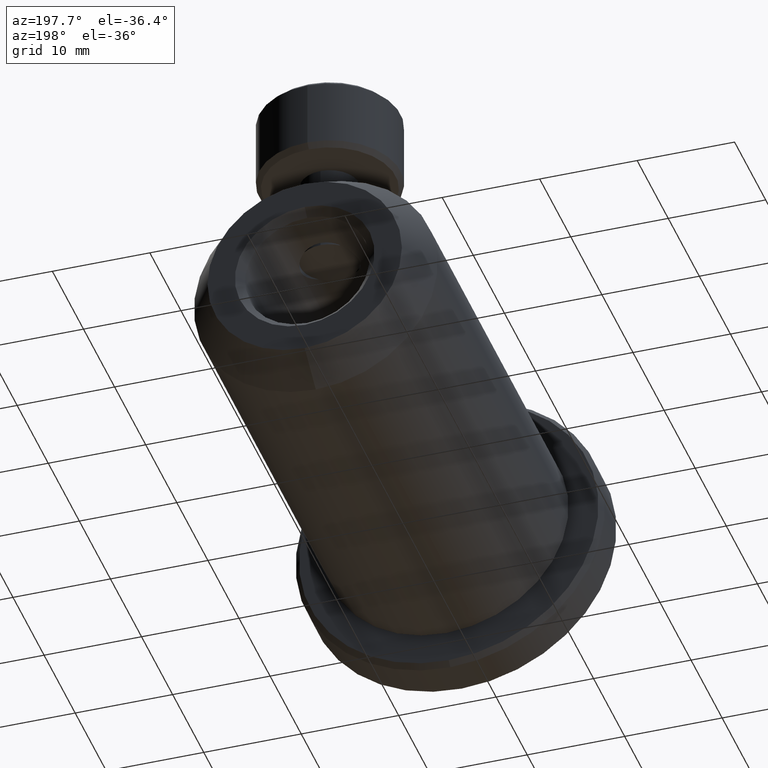
[diagram: clean part render]
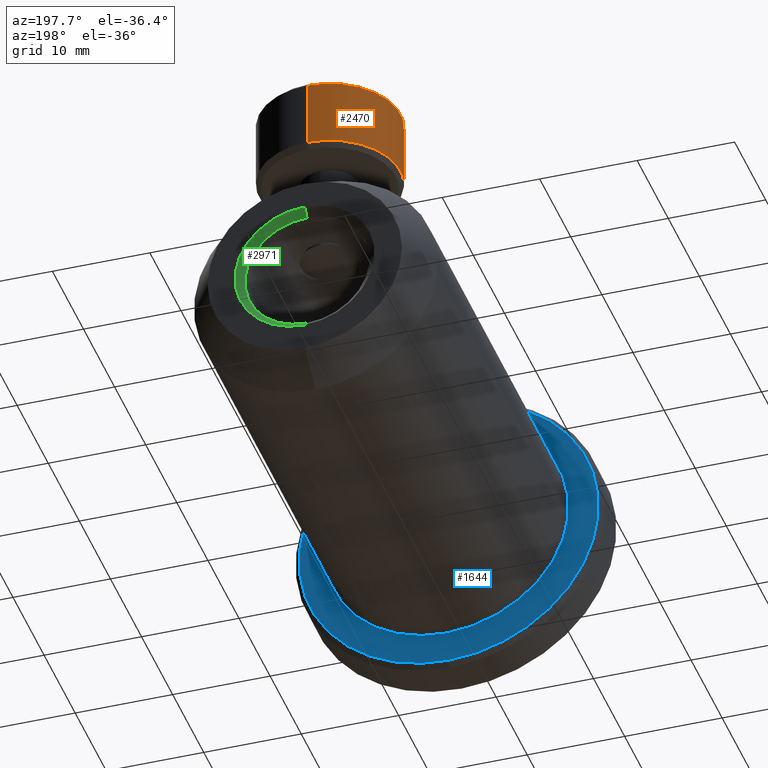
[diagram: same view with three faces highlighted in distinct colors, each labeled with its STEP entity id]
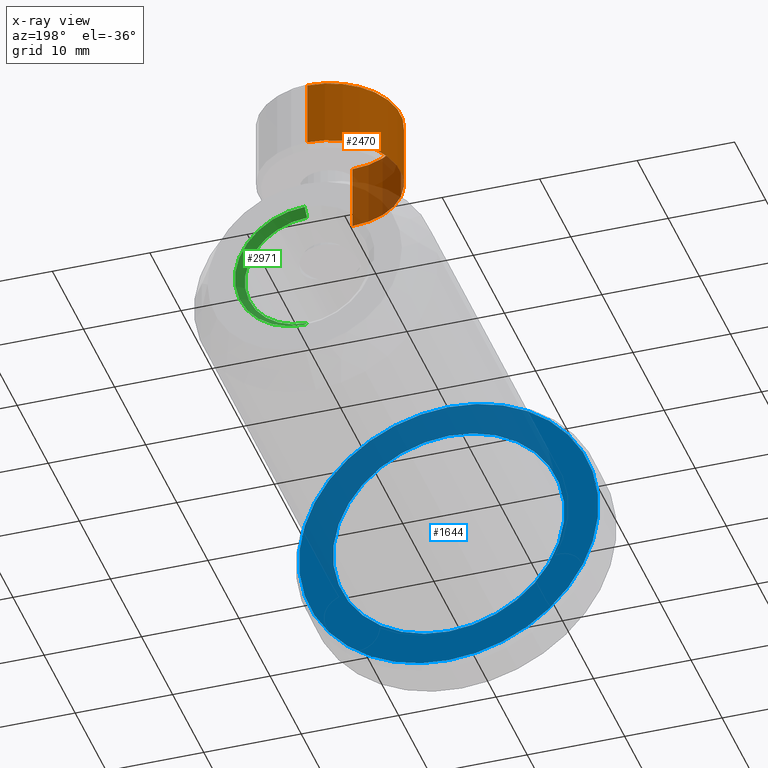
[diagram: x-ray of the same camera — body ghosted, the three highlighted faces saturated]
A machine part, auxiliary view with three faces highlighted in distinct colors.
The next image is the same camera in x-ray (body ghosted, the three faces saturated) — at least one of them is partly hidden behind the body in this view.
Their STEP definitions:

[orange] entity #2470 — the highlighted cylindrical surface (partial cylindrical patch) has radius 7.25 mm, axis along (-0, -0, -1).
#137 = VECTOR ( 'NONE', #609, 1000.000000000000000 ) ;
#217 = ORIENTED_EDGE ( 'NONE', *, *, #2343, .F. ) ;
#323 = AXIS2_PLACEMENT_3D ( 'NONE', #436, #1016, #3220 ) ;
#350 = EDGE_LOOP ( 'NONE', ( #1592, #1631, #3335, #217 ) ) ;
#436 = CARTESIAN_POINT ( 'NONE',  ( -16.77700000000000100, 23.35116843547334000, 34.35262460249725800 ) ) ;
#467 = CARTESIAN_POINT ( 'NONE',  ( -16.77700000000000100, 30.60116843547333700, 27.45262460249725200 ) ) ;
#609 = DIRECTION ( 'NONE',  ( -0.0000000000000000000, -3.304235192336777000E-016, -1.000000000000000000 ) ) ;
#620 = EDGE_CURVE ( 'NONE', #2920, #3243, #3464, .T. ) ;
#722 = AXIS2_PLACEMENT_3D ( 'NONE', #1169, #1974, #2244 ) ;
#752 = DIRECTION ( 'NONE',  ( 0.0000000000000000000, 1.000000000000000000, -4.785444071660157900E-016 ) ) ;
#790 = VERTEX_POINT ( 'NONE', #2331 ) ;
#809 = CARTESIAN_POINT ( 'NONE',  ( -16.77700000000000100, 16.10116843547333700, 27.45262460249725900 ) ) ;
#1016 = DIRECTION ( 'NONE',  ( -0.0000000000000000000, -3.304235192336777000E-016, -1.000000000000000000 ) ) ;
#1069 = CARTESIAN_POINT ( 'NONE',  ( -16.77700000000000100, 23.35116843547333700, 24.35262460249726500 ) ) ;
#1169 = CARTESIAN_POINT ( 'NONE',  ( -16.77700000000000100, 23.35116843547333700, 27.45262460249725600 ) ) ;
#1333 = DIRECTION ( 'NONE',  ( -0.0000000000000000000, -3.304235192336777000E-016, -1.000000000000000000 ) ) ;
#1383 = CIRCLE ( 'NONE', #722, 7.249999999999999100 ) ;
#1592 = ORIENTED_EDGE ( 'NONE', *, *, #620, .F. ) ;
#1631 = ORIENTED_EDGE ( 'NONE', *, *, #1865, .T. ) ;
#1768 = CYLINDRICAL_SURFACE ( 'NONE', #2937, 7.249999999999999100 ) ;
#1865 = EDGE_CURVE ( 'NONE', #2920, #790, #2064, .T. ) ;
#1974 = DIRECTION ( 'NONE',  ( -0.0000000000000000000, -3.304235192336777000E-016, -1.000000000000000000 ) ) ;
#2064 = CIRCLE ( 'NONE', #323, 7.250000000000002700 ) ;
#2105 = VERTEX_POINT ( 'NONE', #467 ) ;
#2197 = VECTOR ( 'NONE', #2387, 1000.000000000000000 ) ;
#2244 = DIRECTION ( 'NONE',  ( 0.0000000000000000000, 1.000000000000000000, -4.785444071660157900E-016 ) ) ;
#2331 = CARTESIAN_POINT ( 'NONE',  ( -16.77700000000000100, 30.60116843547334400, 34.35262460249725800 ) ) ;
#2343 = EDGE_CURVE ( 'NONE', #3243, #2105, #1383, .T. ) ;
#2387 = DIRECTION ( 'NONE',  ( -0.0000000000000000000, -3.304235192336777000E-016, -1.000000000000000000 ) ) ;
#2470 = ADVANCED_FACE ( 'NONE', ( #2482 ), #1768, .T. ) ;
#2482 = FACE_OUTER_BOUND ( 'NONE', #350, .T. ) ;
#2558 = CARTESIAN_POINT ( 'NONE',  ( -16.77700000000000100, 16.10116843547333700, 24.35262460249726900 ) ) ;
#2579 = CARTESIAN_POINT ( 'NONE',  ( -16.77700000000000100, 16.10116843547333700, 34.35262460249725800 ) ) ;
#2610 = EDGE_CURVE ( 'NONE', #790, #2105, #3146, .T. ) ;
#2673 = CARTESIAN_POINT ( 'NONE',  ( -16.77700000000000100, 30.60116843547333700, 24.35262460249726100 ) ) ;
#2920 = VERTEX_POINT ( 'NONE', #2579 ) ;
#2937 = AXIS2_PLACEMENT_3D ( 'NONE', #1069, #1333, #752 ) ;
#3146 = LINE ( 'NONE', #2673, #2197 ) ;
#3220 = DIRECTION ( 'NONE',  ( 0.0000000000000000000, 1.000000000000000000, 0.0000000000000000000 ) ) ;
#3243 = VERTEX_POINT ( 'NONE', #809 ) ;
#3335 = ORIENTED_EDGE ( 'NONE', *, *, #2610, .T. ) ;
#3464 = LINE ( 'NONE', #2558, #137 ) ;

[blue] entity #1644 — the highlighted planar face has unit normal (0, 1, 0).
#42 = ORIENTED_EDGE ( 'NONE', *, *, #1254, .F. ) ;
#75 = AXIS2_PLACEMENT_3D ( 'NONE', #1796, #1265, #1234 ) ;
#83 = VERTEX_POINT ( 'NONE', #3252 ) ;
#432 = CARTESIAN_POINT ( 'NONE',  ( -16.77690416192938400, -14.84883156452665200, 23.71762460249725600 ) ) ;
#444 = CARTESIAN_POINT ( 'NONE',  ( -16.77690416192938400, -14.84883156452665200, 11.84600000000000000 ) ) ;
#452 = FACE_OUTER_BOUND ( 'NONE', #2452, .T. ) ;
#603 = CIRCLE ( 'NONE', #2138, 11.87162460249725600 ) ;
#755 = EDGE_CURVE ( 'NONE', #943, #2085, #1537, .T. ) ;
#857 = DIRECTION ( 'NONE',  ( 0.0000000000000000000, 0.0000000000000000000, -1.000000000000000000 ) ) ;
#914 = DIRECTION ( 'NONE',  ( 0.0000000000000000000, -0.0000000000000000000, 1.000000000000000000 ) ) ;
#943 = VERTEX_POINT ( 'NONE', #3223 ) ;
#974 = AXIS2_PLACEMENT_3D ( 'NONE', #3373, #2251, #857 ) ;
#1021 = CARTESIAN_POINT ( 'NONE',  ( -16.77690416192945100, -14.84883156452665200, 11.84596359904499100 ) ) ;
#1110 = PLANE ( 'NONE',  #3521 ) ;
#1113 = CIRCLE ( 'NONE', #974, 15.36700000000000100 ) ;
#1203 = FACE_BOUND ( 'NONE', #3512, .T. ) ;
#1234 = DIRECTION ( 'NONE',  ( 0.0000000000000000000, 0.0000000000000000000, 1.000000000000000000 ) ) ;
#1254 = EDGE_CURVE ( 'NONE', #1975, #83, #1113, .T. ) ;
#1265 = DIRECTION ( 'NONE',  ( -0.0000000000000000000, 1.000000000000000000, -0.0000000000000000000 ) ) ;
#1530 = DIRECTION ( 'NONE',  ( -0.0000000000000000000, 1.000000000000000000, -0.0000000000000000000 ) ) ;
#1537 = CIRCLE ( 'NONE', #75, 11.87162460249725600 ) ;
#1644 = ADVANCED_FACE ( 'NONE', ( #1203, #452 ), #1110, .T. ) ;
#1796 = CARTESIAN_POINT ( 'NONE',  ( -16.77690416192938400, -14.84883156452665200, 11.84600000000000000 ) ) ;
#1975 = VERTEX_POINT ( 'NONE', #2297 ) ;
#2085 = VERTEX_POINT ( 'NONE', #432 ) ;
#2108 = EDGE_CURVE ( 'NONE', #2085, #943, #603, .T. ) ;
#2138 = AXIS2_PLACEMENT_3D ( 'NONE', #444, #1530, #3186 ) ;
#2157 = ORIENTED_EDGE ( 'NONE', *, *, #3058, .F. ) ;
#2251 = DIRECTION ( 'NONE',  ( -0.0000000000000000000, -1.000000000000000000, -0.0000000000000000000 ) ) ;
#2297 = CARTESIAN_POINT ( 'NONE',  ( -16.77690416192945100, -14.84883156452665200, -3.521036400955010600 ) ) ;
#2452 = EDGE_LOOP ( 'NONE', ( #42, #2157 ) ) ;
#2537 = DIRECTION ( 'NONE',  ( 0.0000000000000000000, 1.000000000000000000, 0.0000000000000000000 ) ) ;
#2668 = DIRECTION ( 'NONE',  ( -0.0000000000000000000, -1.000000000000000000, -0.0000000000000000000 ) ) ;
#2809 = AXIS2_PLACEMENT_3D ( 'NONE', #1021, #2668, #3493 ) ;
#2817 = CIRCLE ( 'NONE', #2809, 15.36700000000000100 ) ;
#3058 = EDGE_CURVE ( 'NONE', #83, #1975, #2817, .T. ) ;
#3186 = DIRECTION ( 'NONE',  ( 0.0000000000000000000, 0.0000000000000000000, 1.000000000000000000 ) ) ;
#3216 = ORIENTED_EDGE ( 'NONE', *, *, #2108, .F. ) ;
#3223 = CARTESIAN_POINT ( 'NONE',  ( -16.77690416192938400, -14.84883156452665200, -0.02562460249725534400 ) ) ;
#3238 = ORIENTED_EDGE ( 'NONE', *, *, #755, .F. ) ;
#3252 = CARTESIAN_POINT ( 'NONE',  ( -16.77690416192944800, -14.84883156452665200, 27.21296359904499000 ) ) ;
#3373 = CARTESIAN_POINT ( 'NONE',  ( -16.77690416192945100, -14.84883156452665200, 11.84596359904499100 ) ) ;
#3413 = CARTESIAN_POINT ( 'NONE',  ( -1.409904161929450800, -14.84883156452665200, 11.84596359904499100 ) ) ;
#3493 = DIRECTION ( 'NONE',  ( 0.0000000000000000000, 0.0000000000000000000, -1.000000000000000000 ) ) ;
#3512 = EDGE_LOOP ( 'NONE', ( #3216, #3238 ) ) ;
#3521 = AXIS2_PLACEMENT_3D ( 'NONE', #3413, #2537, #914 ) ;

[green] entity #2971 — the highlighted conical surface has half-angle 45 deg.
#106 = ORIENTED_EDGE ( 'NONE', *, *, #1286, .T. ) ;
#294 = CARTESIAN_POINT ( 'NONE',  ( -16.77690416192938400, 30.67394387481525100, 18.23409999999994100 ) ) ;
#302 = CARTESIAN_POINT ( 'NONE',  ( -16.77690416192938400, 30.67394387481525100, 11.84600000000000000 ) ) ;
#482 = EDGE_LOOP ( 'NONE', ( #3332, #2581, #1906, #106 ) ) ;
#512 = CONICAL_SURFACE ( 'NONE', #1698, 7.165324560658029400, 0.7853981633974482800 ) ;
#579 = DIRECTION ( 'NONE',  ( 0.0000000000000000000, 0.7071067811865475700, 0.7071067811865474600 ) ) ;
#581 = DIRECTION ( 'NONE',  ( -0.0000000000000000000, 1.000000000000000000, -0.0000000000000000000 ) ) ;
#608 = FACE_OUTER_BOUND ( 'NONE', #482, .T. ) ;
#645 = DIRECTION ( 'NONE',  ( -0.0000000000000000000, 1.000000000000000000, -0.0000000000000000000 ) ) ;
#851 = VECTOR ( 'NONE', #2503, 1000.000000000000000 ) ;
#871 = DIRECTION ( 'NONE',  ( 0.0000000000000000000, 0.0000000000000000000, 1.000000000000000000 ) ) ;
#1054 = CIRCLE ( 'NONE', #1361, 6.388099999999940200 ) ;
#1151 = EDGE_CURVE ( 'NONE', #2285, #1950, #1627, .T. ) ;
#1246 = AXIS2_PLACEMENT_3D ( 'NONE', #2547, #645, #2569 ) ;
#1281 = DIRECTION ( 'NONE',  ( 0.0000000000000000000, 0.0000000000000000000, 1.000000000000000000 ) ) ;
#1286 = EDGE_CURVE ( 'NONE', #1950, #3167, #2084, .T. ) ;
#1361 = AXIS2_PLACEMENT_3D ( 'NONE', #302, #581, #871 ) ;
#1558 = CARTESIAN_POINT ( 'NONE',  ( -16.77690416192938400, 31.45116843547333800, 11.84600000000000000 ) ) ;
#1575 = EDGE_CURVE ( 'NONE', #3319, #3167, #2166, .T. ) ;
#1627 = LINE ( 'NONE', #3350, #3217 ) ;
#1698 = AXIS2_PLACEMENT_3D ( 'NONE', #1558, #2383, #1281 ) ;
#1702 = CARTESIAN_POINT ( 'NONE',  ( -16.77690416192938400, 30.67394387481525100, 5.457900000000061700 ) ) ;
#1906 = ORIENTED_EDGE ( 'NONE', *, *, #1151, .T. ) ;
#1950 = VERTEX_POINT ( 'NONE', #2039 ) ;
#1972 = CARTESIAN_POINT ( 'NONE',  ( -16.77690416192938400, 31.45116843547333800, 4.680675439341971600 ) ) ;
#2039 = CARTESIAN_POINT ( 'NONE',  ( -16.77690416192938400, 31.45116843547333800, 19.01132456065802900 ) ) ;
#2084 = CIRCLE ( 'NONE', #1246, 7.165324560658029400 ) ;
#2166 = LINE ( 'NONE', #1972, #851 ) ;
#2285 = VERTEX_POINT ( 'NONE', #294 ) ;
#2383 = DIRECTION ( 'NONE',  ( -0.0000000000000000000, 1.000000000000000000, -0.0000000000000000000 ) ) ;
#2503 = DIRECTION ( 'NONE',  ( 8.659560562354931600E-017, 0.7071067811865475700, -0.7071067811865474600 ) ) ;
#2547 = CARTESIAN_POINT ( 'NONE',  ( -16.77690416192938400, 31.45116843547333800, 11.84600000000000000 ) ) ;
#2569 = DIRECTION ( 'NONE',  ( 0.0000000000000000000, 0.0000000000000000000, 1.000000000000000000 ) ) ;
#2581 = ORIENTED_EDGE ( 'NONE', *, *, #3425, .F. ) ;
#2971 = ADVANCED_FACE ( 'NONE', ( #608 ), #512, .F. ) ;
#3167 = VERTEX_POINT ( 'NONE', #3526 ) ;
#3217 = VECTOR ( 'NONE', #579, 1000.000000000000000 ) ;
#3319 = VERTEX_POINT ( 'NONE', #1702 ) ;
#3332 = ORIENTED_EDGE ( 'NONE', *, *, #1575, .F. ) ;
#3350 = CARTESIAN_POINT ( 'NONE',  ( -16.77690416192938400, 31.45116843547333800, 19.01132456065802900 ) ) ;
#3425 = EDGE_CURVE ( 'NONE', #2285, #3319, #1054, .T. ) ;
#3526 = CARTESIAN_POINT ( 'NONE',  ( -16.77690416192938400, 31.45116843547333800, 4.680675439341971600 ) ) ;